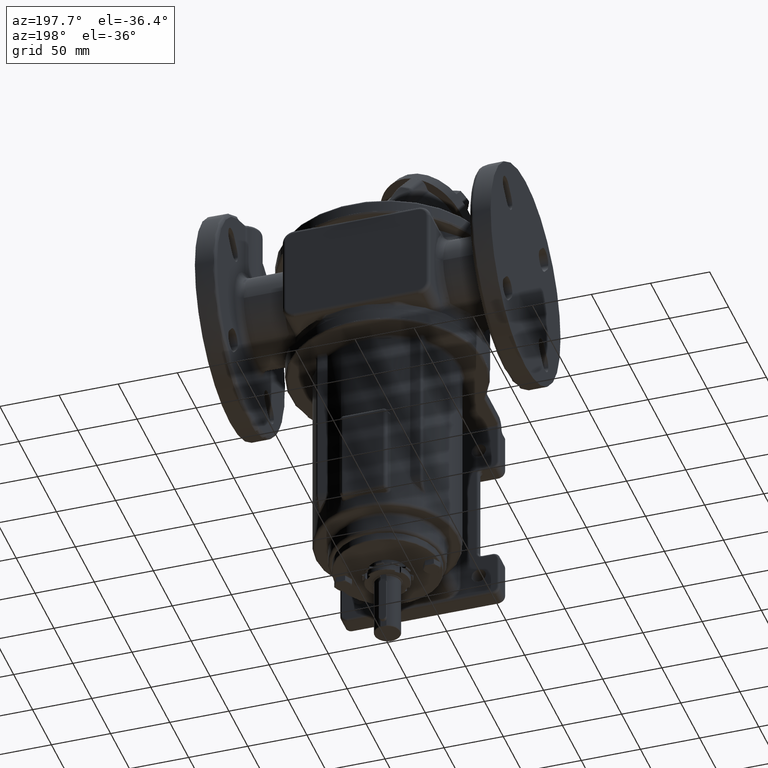
[diagram: clean part render]
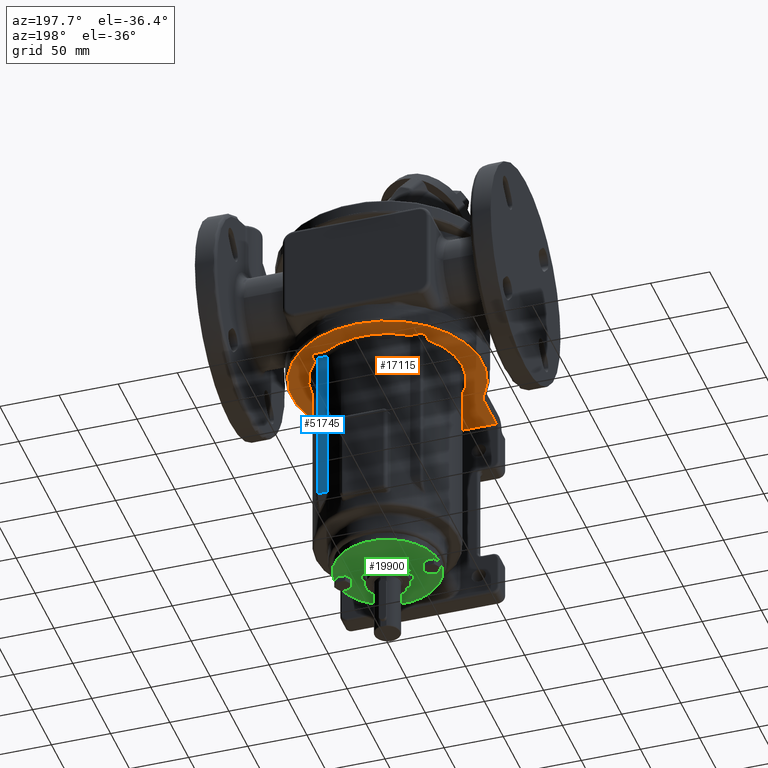
[diagram: same view with three faces highlighted in distinct colors, each labeled with its STEP entity id]
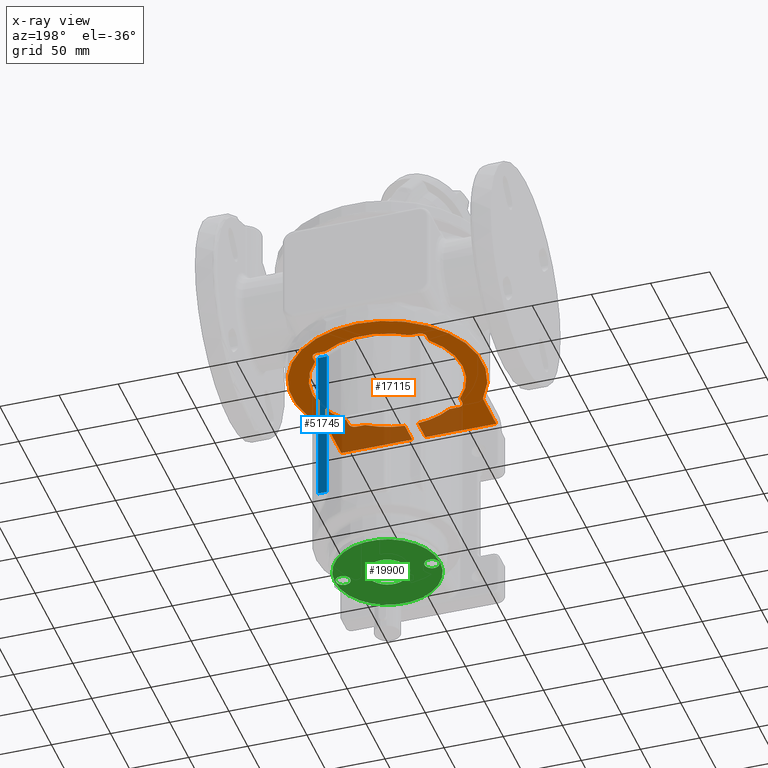
[diagram: x-ray of the same camera — body ghosted, the three highlighted faces saturated]
A machine part, auxiliary view with three faces highlighted in distinct colors.
The next image is the same camera in x-ray (body ghosted, the three faces saturated) — at least one of them is partly hidden behind the body in this view.
Their STEP definitions:

[orange] entity #17115 — the highlighted planar face has unit normal (0, 0, 1).
#1=DIRECTION('',(-1.E0,1.728553892614E-10,0.E0));
#2=VECTOR('',#1,6.E1);
#3=CARTESIAN_POINT('',(6.55E1,-8.300000001037E1,-1.E1));
#4=LINE('',#3,#2);
#5=DIRECTION('',(-7.912820252435E-11,-1.E0,0.E0));
#6=VECTOR('',#5,3.401020514789E1);
#7=CARTESIAN_POINT('',(6.550000000269E1,-4.898979486248E1,-1.E1));
#8=LINE('',#7,#6);
#9=DIRECTION('',(8.309016993840E-11,-1.E0,0.E0));
#10=VECTOR('',#9,3.401020514630E1);
#11=CARTESIAN_POINT('',(-6.550000000283E1,-4.898979486286E1,-1.E1));
#12=LINE('',#11,#10);
#13=DIRECTION('',(-1.E0,-1.526520539604E-10,0.E0));
#14=VECTOR('',#13,6.E1);
#15=CARTESIAN_POINT('',(-5.5E0,-8.3E1,-1.E1));
#16=LINE('',#15,#14);
#17=DIRECTION('',(-2.049295953677E-12,1.E0,0.E0));
#18=VECTOR('',#17,1.973863740658E1);
#19=CARTESIAN_POINT('',(-5.5E0,-8.3E1,-1.E1));
#20=LINE('',#19,#18);
#21=DIRECTION('',(-1.E0,1.896283518889E-10,0.E0));
#22=VECTOR('',#21,7.278826626025E0);
#23=CARTESIAN_POINT('',(-3.572117340998E1,-5.25E1,-1.E1));
#24=LINE('',#23,#22);
#25=DIRECTION('',(-1.009989508208E-10,1.E0,0.E0));
#26=VECTOR('',#25,5.927746762307E0);
#27=CARTESIAN_POINT('',(-4.799999999940E1,-4.750000002464E1,-1.E1));
#28=LINE('',#27,#26);
#29=DIRECTION('',(7.732169494111E-11,1.E0,0.E0));
#30=VECTOR('',#29,5.927737324932E0);
#31=CARTESIAN_POINT('',(-4.8E1,4.157226269542E1,-1.E1));
#32=LINE('',#31,#30);
#33=DIRECTION('',(1.E0,2.300731589235E-10,0.E0));
#34=VECTOR('',#33,7.278832397896E0);
#35=CARTESIAN_POINT('',(-4.300000004107E1,5.249999999833E1,-1.E1));
#36=LINE('',#35,#34);
#37=DIRECTION('',(1.E0,-1.896284450262E-10,0.E0));
#38=VECTOR('',#37,7.278823050981E0);
#39=CARTESIAN_POINT('',(3.572117698502E1,5.25E1,-1.E1));
#40=LINE('',#39,#38);
#41=DIRECTION('',(1.009989505942E-10,-1.E0,0.E0));
#42=VECTOR('',#41,5.927746775602E0);
#43=CARTESIAN_POINT('',(4.799999999940E1,4.750000002464E1,-1.E1));
#44=LINE('',#43,#42);
#45=DIRECTION('',(-7.732289385003E-11,-1.E0,0.E0));
#46=VECTOR('',#45,5.927737306958E0);
#47=CARTESIAN_POINT('',(4.8E1,-4.157226271339E1,-1.E1));
#48=LINE('',#47,#46);
#49=DIRECTION('',(-1.E0,-2.300721004596E-10,0.E0));
#50=VECTOR('',#49,7.278835001226E0);
#51=CARTESIAN_POINT('',(4.300000004107E1,-5.249999999833E1,-1.E1));
#52=LINE('',#51,#50);
#53=DIRECTION('',(-4.473596468185E-12,-1.E0,0.E0));
#54=VECTOR('',#53,1.973863738372E1);
#55=CARTESIAN_POINT('',(5.500000000088E0,-6.326136261628E1,-1.E1));
#56=LINE('',#55,#54);
#110=CARTESIAN_POINT('',(5.500000000088E0,-6.326136261628E1,-1.E1));
#112=CARTESIAN_POINT('',(0.E0,0.E0,-1.E1));
#113=DIRECTION('',(0.E0,0.E0,1.E0));
#114=DIRECTION('',(8.661417323373E-2,-9.962419309560E-1,0.E0));
#115=AXIS2_PLACEMENT_3D('',#112,#113,#114);
#189=CARTESIAN_POINT('',(4.3E1,-4.75E1,-1.E1));
#190=DIRECTION('',(0.E0,0.E0,1.E0));
#191=DIRECTION('',(0.E0,-1.E0,0.E0));
#192=AXIS2_PLACEMENT_3D('',#189,#190,#191);
#269=CARTESIAN_POINT('',(4.8E1,-4.157226271339E1,-1.E1));
#271=CARTESIAN_POINT('',(0.E0,0.E0,-1.E1));
#272=DIRECTION('',(0.E0,0.E0,1.E0));
#273=DIRECTION('',(7.559043768576E-1,-6.546820396555E-1,0.E0));
#274=AXIS2_PLACEMENT_3D('',#271,#272,#273);
#348=CARTESIAN_POINT('',(4.3E1,4.75E1,-1.E1));
#349=DIRECTION('',(0.E0,0.E0,1.E0));
#350=DIRECTION('',(1.E0,0.E0,0.E0));
#351=AXIS2_PLACEMENT_3D('',#348,#349,#350);
#427=CARTESIAN_POINT('',(3.572117698502E1,5.25E1,-1.E1));
#429=CARTESIAN_POINT('',(0.E0,0.E0,-1.E1));
#430=DIRECTION('',(0.E0,0.E0,1.E0));
#431=DIRECTION('',(5.625391702516E-1,8.267706344160E-1,0.E0));
#432=AXIS2_PLACEMENT_3D('',#429,#430,#431);
#470=CARTESIAN_POINT('',(-3.572116764317E1,5.25E1,-1.E1));
#506=CARTESIAN_POINT('',(-4.3E1,4.75E1,-1.E1));
#507=DIRECTION('',(0.E0,0.E0,1.E0));
#508=DIRECTION('',(0.E0,1.E0,0.E0));
#509=AXIS2_PLACEMENT_3D('',#506,#507,#508);
#624=CARTESIAN_POINT('',(0.E0,0.E0,-1.E1));
#625=DIRECTION('',(0.E0,0.E0,1.E0));
#626=DIRECTION('',(-7.559043774179E-1,6.546820390086E-1,0.E0));
#627=AXIS2_PLACEMENT_3D('',#624,#625,#626);
#629=CARTESIAN_POINT('',(-4.8E1,-4.157225326233E1,-1.E1));
#1496=CARTESIAN_POINT('',(-4.3E1,-4.75E1,-1.E1));
#1497=DIRECTION('',(0.E0,0.E0,1.E0));
#1498=DIRECTION('',(-1.E0,0.E0,0.E0));
#1499=AXIS2_PLACEMENT_3D('',#1496,#1497,#1498);
#1511=CARTESIAN_POINT('',(-5.500000000040E0,-6.326136259342E1,-1.E1));
#1576=CARTESIAN_POINT('',(0.E0,0.E0,-1.E1));
#1577=DIRECTION('',(0.E0,0.E0,1.E0));
#1578=DIRECTION('',(-5.625390163166E-1,-8.267707391542E-1,0.E0));
#1579=AXIS2_PLACEMENT_3D('',#1576,#1577,#1578);
#1888=CARTESIAN_POINT('',(-7.25E1,-4.898979485566E1,-1.E1));
#1889=DIRECTION('',(0.E0,0.E0,1.E0));
#1890=DIRECTION('',(1.E0,0.E0,0.E0));
#1891=AXIS2_PLACEMENT_3D('',#1888,#1889,#1890);
#1908=CARTESIAN_POINT('',(0.E0,0.E0,-1.E1));
#1909=DIRECTION('',(0.E0,0.E0,-1.E0));
#1910=DIRECTION('',(-8.285714267564E-1,-5.598833724651E-1,0.E0));
#1911=AXIS2_PLACEMENT_3D('',#1908,#1909,#1910);
#1913=CARTESIAN_POINT('',(7.25E1,-4.898979485566E1,-1.E1));
#1914=DIRECTION('',(0.E0,0.E0,1.E0));
#1915=DIRECTION('',(-8.285714326609E-1,5.598833637270E-1,0.E0));
#1916=AXIS2_PLACEMENT_3D('',#1913,#1914,#1915);
#14853=VERTEX_POINT('',#269);
#14855=VERTEX_POINT('',#629);
#14862=CARTESIAN_POINT('',(-4.799992796604E1,4.157230947705E1,-1.E1));
#14863=VERTEX_POINT('',#14862);
#14866=CARTESIAN_POINT('',(4.799994666520E1,4.157228788674E1,-1.E1));
#14867=VERTEX_POINT('',#14866);
#14870=CARTESIAN_POINT('',(4.300000004107E1,-5.249999999833E1,-1.E1));
#14871=CARTESIAN_POINT('',(3.572116503984E1,-5.25E1,-1.E1));
#14872=VERTEX_POINT('',#14870);
#14873=VERTEX_POINT('',#14871);
#14878=CARTESIAN_POINT('',(-3.572117340998E1,-5.25E1,-1.E1));
#14879=CARTESIAN_POINT('',(-4.300000003600E1,-5.249999999862E1,-1.E1));
#14880=VERTEX_POINT('',#14878);
#14881=VERTEX_POINT('',#14879);
#14895=VERTEX_POINT('',#427);
#14903=CARTESIAN_POINT('',(4.8E1,4.75E1,-1.E1));
#14904=VERTEX_POINT('',#14903);
#14905=CARTESIAN_POINT('',(4.3E1,5.25E1,-1.E1));
#14906=VERTEX_POINT('',#14905);
#14907=VERTEX_POINT('',#470);
#14926=CARTESIAN_POINT('',(-4.3E1,5.25E1,-1.E1));
#14927=VERTEX_POINT('',#14926);
#14928=CARTESIAN_POINT('',(-4.8E1,4.75E1,-1.E1));
#14929=VERTEX_POINT('',#14928);
#14946=CARTESIAN_POINT('',(6.67E1,-4.507061126721E1,-1.E1));
#14948=VERTEX_POINT('',#14946);
#14950=CARTESIAN_POINT('',(6.55E1,-4.898979485566E1,-1.E1));
#14952=VERTEX_POINT('',#14950);
#14954=CARTESIAN_POINT('',(-6.55E1,-4.898979485566E1,-1.E1));
#14956=VERTEX_POINT('',#14954);
#14958=CARTESIAN_POINT('',(-6.67E1,-4.507061126721E1,-1.E1));
#14960=VERTEX_POINT('',#14958);
#15063=CARTESIAN_POINT('',(4.799999999954E1,-4.750000002035E1,-1.E1));
#15064=VERTEX_POINT('',#15063);
#15065=CARTESIAN_POINT('',(-4.799999999940E1,-4.750000002464E1,-1.E1));
#15066=VERTEX_POINT('',#15065);
#15133=CARTESIAN_POINT('',(6.55E1,-8.300000001037E1,-1.E1));
#15134=CARTESIAN_POINT('',(5.5E0,-8.3E1,-1.E1));
#15135=VERTEX_POINT('',#15133);
#15136=VERTEX_POINT('',#15134);
#15155=VERTEX_POINT('',#110);
#15218=VERTEX_POINT('',#1511);
#15221=CARTESIAN_POINT('',(-5.5E0,-8.3E1,-1.E1));
#15222=VERTEX_POINT('',#15221);
#15225=CARTESIAN_POINT('',(-6.55E1,-8.300000000916E1,-1.E1));
#15226=VERTEX_POINT('',#15225);
#17056=CARTESIAN_POINT('',(0.E0,0.E0,-1.E1));
#17057=DIRECTION('',(0.E0,0.E0,1.E0));
#17058=DIRECTION('',(1.E0,0.E0,0.E0));
#17059=AXIS2_PLACEMENT_3D('',#17056,#17057,#17058);
#17060=PLANE('',#17059);
#17062=ORIENTED_EDGE('',*,*,#17061,.F.);
#17064=ORIENTED_EDGE('',*,*,#17063,.F.);
#17066=ORIENTED_EDGE('',*,*,#17065,.F.);
#17068=ORIENTED_EDGE('',*,*,#17067,.F.);
#17070=ORIENTED_EDGE('',*,*,#17069,.F.);
#17072=ORIENTED_EDGE('',*,*,#17071,.T.);
#17074=ORIENTED_EDGE('',*,*,#17073,.F.);
#17076=ORIENTED_EDGE('',*,*,#17075,.T.);
#17078=ORIENTED_EDGE('',*,*,#17077,.F.);
#17080=ORIENTED_EDGE('',*,*,#17079,.T.);
#17082=ORIENTED_EDGE('',*,*,#17081,.F.);
#17084=ORIENTED_EDGE('',*,*,#17083,.T.);
#17086=ORIENTED_EDGE('',*,*,#17085,.F.);
#17088=ORIENTED_EDGE('',*,*,#17087,.T.);
#17090=ORIENTED_EDGE('',*,*,#17089,.F.);
#17092=ORIENTED_EDGE('',*,*,#17091,.T.);
#17094=ORIENTED_EDGE('',*,*,#17093,.F.);
#17096=ORIENTED_EDGE('',*,*,#17095,.T.);
#17098=ORIENTED_EDGE('',*,*,#17097,.F.);
#17100=ORIENTED_EDGE('',*,*,#17099,.T.);
#17102=ORIENTED_EDGE('',*,*,#17101,.F.);
#17104=ORIENTED_EDGE('',*,*,#17103,.T.);
#17106=ORIENTED_EDGE('',*,*,#17105,.F.);
#17108=ORIENTED_EDGE('',*,*,#17107,.T.);
#17110=ORIENTED_EDGE('',*,*,#17109,.F.);
#17112=ORIENTED_EDGE('',*,*,#17111,.T.);
#17113=EDGE_LOOP('',(#17062,#17064,#17066,#17068,#17070,#17072,#17074,#17076,
#17078,#17080,#17082,#17084,#17086,#17088,#17090,#17092,#17094,#17096,#17098,
#17100,#17102,#17104,#17106,#17108,#17110,#17112));
#17114=FACE_OUTER_BOUND('',#17113,.F.);
#17115=ADVANCED_FACE('',(#17114),#17060,.F.);
#116=CIRCLE('',#115,6.35E1);
#193=CIRCLE('',#192,5.E0);
#275=CIRCLE('',#274,6.35E1);
#352=CIRCLE('',#351,5.E0);
#433=CIRCLE('',#432,6.35E1);
#510=CIRCLE('',#509,5.E0);
#628=CIRCLE('',#627,6.35E1);
#1500=CIRCLE('',#1499,5.E0);
#1580=CIRCLE('',#1579,6.35E1);
#1892=CIRCLE('',#1891,7.E0);
#1912=CIRCLE('',#1911,8.05E1);
#1917=CIRCLE('',#1916,7.E0);
#17061=EDGE_CURVE('',#15135,#15136,#4,.T.);
#17063=EDGE_CURVE('',#14952,#15135,#8,.T.);
#17065=EDGE_CURVE('',#14948,#14952,#1917,.T.);
#17067=EDGE_CURVE('',#14960,#14948,#1912,.T.);
#17069=EDGE_CURVE('',#14956,#14960,#1892,.T.);
#17071=EDGE_CURVE('',#14956,#15226,#12,.T.);
#17073=EDGE_CURVE('',#15222,#15226,#16,.T.);
#17075=EDGE_CURVE('',#15222,#15218,#20,.T.);
#17077=EDGE_CURVE('',#14880,#15218,#1580,.T.);
#17079=EDGE_CURVE('',#14880,#14881,#24,.T.);
#17081=EDGE_CURVE('',#15066,#14881,#1500,.T.);
#17083=EDGE_CURVE('',#15066,#14855,#28,.T.);
#17085=EDGE_CURVE('',#14863,#14855,#628,.T.);
#17087=EDGE_CURVE('',#14863,#14929,#32,.T.);
#17089=EDGE_CURVE('',#14927,#14929,#510,.T.);
#17091=EDGE_CURVE('',#14927,#14907,#36,.T.);
#17093=EDGE_CURVE('',#14895,#14907,#433,.T.);
#17095=EDGE_CURVE('',#14895,#14906,#40,.T.);
#17097=EDGE_CURVE('',#14904,#14906,#352,.T.);
#17099=EDGE_CURVE('',#14904,#14867,#44,.T.);
#17101=EDGE_CURVE('',#14853,#14867,#275,.T.);
#17103=EDGE_CURVE('',#14853,#15064,#48,.T.);
#17105=EDGE_CURVE('',#14872,#15064,#193,.T.);
#17107=EDGE_CURVE('',#14872,#14873,#52,.T.);
#17109=EDGE_CURVE('',#15155,#14873,#116,.T.);
#17111=EDGE_CURVE('',#15155,#15136,#56,.T.);

[blue] entity #51745 — the highlighted planar face has unit normal (0, -1, 0).
#358=CARTESIAN_POINT('',(3.541186241876E1,4.95E1,-1.299999999066E1));
#14105=DIRECTION('',(7.162438580082E-11,0.E0,1.E0));
#14106=VECTOR('',#14105,1.354999999968E2);
#14107=CARTESIAN_POINT('',(4.3E1,4.95E1,-1.484999999968E2));
#14108=LINE('',#14107,#14106);
#14109=DIRECTION('',(1.E0,-9.363862044460E-14,-1.230494811014E-9));
#14110=VECTOR('',#14109,7.588137590947E0);
#14111=CARTESIAN_POINT('',(3.541186241876E1,4.95E1,-1.299999999066E1));
#14112=LINE('',#14111,#14110);
#14113=DIRECTION('',(-3.639709280142E-12,0.E0,1.E0));
#14114=VECTOR('',#14113,1.355000000012E2);
#14115=CARTESIAN_POINT('',(3.541186241925E1,4.95E1,-1.484999999919E2));
#14116=LINE('',#14115,#14114);
#14132=DIRECTION('',(-1.E0,1.685495170268E-14,6.478219414650E-10));
#14133=VECTOR('',#14132,7.588137580749E0);
#14134=CARTESIAN_POINT('',(4.3E1,4.95E1,-1.484999999968E2));
#14135=LINE('',#14134,#14133);
#14882=CARTESIAN_POINT('',(4.3E1,4.95E1,-1.484999999968E2));
#14883=CARTESIAN_POINT('',(4.300000000971E1,4.95E1,-1.3E1));
#14884=VERTEX_POINT('',#14882);
#14885=VERTEX_POINT('',#14883);
#14896=VERTEX_POINT('',#358);
#14899=CARTESIAN_POINT('',(3.541186241925E1,4.95E1,-1.484999999919E2));
#14900=VERTEX_POINT('',#14899);
#51732=CARTESIAN_POINT('',(4.5E1,4.95E1,-1.E1));
#51733=DIRECTION('',(0.E0,-1.E0,0.E0));
#51734=DIRECTION('',(0.E0,0.E0,-1.E0));
#51735=AXIS2_PLACEMENT_3D('',#51732,#51733,#51734);
#51736=PLANE('',#51735);
#51737=ORIENTED_EDGE('',*,*,#51723,.T.);
#51738=ORIENTED_EDGE('',*,*,#17485,.F.);
#51740=ORIENTED_EDGE('',*,*,#51739,.F.);
#51742=ORIENTED_EDGE('',*,*,#51741,.F.);
#51743=EDGE_LOOP('',(#51737,#51738,#51740,#51742));
#51744=FACE_OUTER_BOUND('',#51743,.F.);
#51745=ADVANCED_FACE('',(#51744),#51736,.F.);
#17485=EDGE_CURVE('',#14896,#14885,#14112,.T.);
#51723=EDGE_CURVE('',#14884,#14885,#14108,.T.);
#51739=EDGE_CURVE('',#14900,#14896,#14116,.T.);
#51741=EDGE_CURVE('',#14884,#14900,#14135,.T.);

[green] entity #19900 — the highlighted planar face has unit normal (0, 0, 1).
#2612=CARTESIAN_POINT('',(0.E0,0.E0,-2.02E2));
#2613=DIRECTION('',(0.E0,0.E0,-1.E0));
#2614=DIRECTION('',(-1.E0,0.E0,0.E0));
#2615=AXIS2_PLACEMENT_3D('',#2612,#2613,#2614);
#2617=CARTESIAN_POINT('',(0.E0,0.E0,-2.02E2));
#2618=DIRECTION('',(0.E0,0.E0,-1.E0));
#2619=DIRECTION('',(1.E0,0.E0,0.E0));
#2620=AXIS2_PLACEMENT_3D('',#2617,#2618,#2619);
#2622=CARTESIAN_POINT('',(0.E0,0.E0,-2.02E2));
#2623=DIRECTION('',(0.E0,0.E0,-1.E0));
#2624=DIRECTION('',(-1.E0,0.E0,0.E0));
#2625=AXIS2_PLACEMENT_3D('',#2622,#2623,#2624);
#2627=CARTESIAN_POINT('',(0.E0,0.E0,-2.02E2));
#2628=DIRECTION('',(0.E0,0.E0,-1.E0));
#2629=DIRECTION('',(1.E0,0.E0,0.E0));
#2630=AXIS2_PLACEMENT_3D('',#2627,#2628,#2629);
#2632=CARTESIAN_POINT('',(-3.75E1,0.E0,-2.02E2));
#2633=DIRECTION('',(0.E0,0.E0,1.E0));
#2634=DIRECTION('',(0.E0,-1.E0,0.E0));
#2635=AXIS2_PLACEMENT_3D('',#2632,#2633,#2634);
#2637=CARTESIAN_POINT('',(-3.75E1,0.E0,-2.02E2));
#2638=DIRECTION('',(0.E0,0.E0,1.E0));
#2639=DIRECTION('',(0.E0,1.E0,0.E0));
#2640=AXIS2_PLACEMENT_3D('',#2637,#2638,#2639);
#2642=CARTESIAN_POINT('',(3.75E1,0.E0,-2.02E2));
#2643=DIRECTION('',(0.E0,0.E0,1.E0));
#2644=DIRECTION('',(0.E0,-1.E0,0.E0));
#2645=AXIS2_PLACEMENT_3D('',#2642,#2643,#2644);
#2647=CARTESIAN_POINT('',(3.75E1,0.E0,-2.02E2));
#2648=DIRECTION('',(0.E0,0.E0,1.E0));
#2649=DIRECTION('',(0.E0,1.E0,0.E0));
#2650=AXIS2_PLACEMENT_3D('',#2647,#2648,#2649);
#15355=CARTESIAN_POINT('',(-4.45E1,0.E0,-2.02E2));
#15356=CARTESIAN_POINT('',(4.45E1,1.089936651241E-14,-2.02E2));
#15357=VERTEX_POINT('',#15355);
#15358=VERTEX_POINT('',#15356);
#15367=CARTESIAN_POINT('',(-1.7E1,0.E0,-2.02E2));
#15368=CARTESIAN_POINT('',(1.7E1,0.E0,-2.02E2));
#15369=VERTEX_POINT('',#15367);
#15370=VERTEX_POINT('',#15368);
#15413=CARTESIAN_POINT('',(-3.75E1,-6.1E0,-2.02E2));
#15414=CARTESIAN_POINT('',(-3.75E1,6.1E0,-2.02E2));
#15415=VERTEX_POINT('',#15413);
#15416=VERTEX_POINT('',#15414);
#15451=CARTESIAN_POINT('',(3.75E1,-6.1E0,-2.02E2));
#15452=CARTESIAN_POINT('',(3.75E1,6.1E0,-2.02E2));
#15453=VERTEX_POINT('',#15451);
#15454=VERTEX_POINT('',#15452);
#19872=CARTESIAN_POINT('',(0.E0,0.E0,-2.02E2));
#19873=DIRECTION('',(0.E0,0.E0,1.E0));
#19874=DIRECTION('',(1.E0,0.E0,0.E0));
#19875=AXIS2_PLACEMENT_3D('',#19872,#19873,#19874);
#19876=PLANE('',#19875);
#19877=ORIENTED_EDGE('',*,*,#19862,.F.);
#19879=ORIENTED_EDGE('',*,*,#19878,.F.);
#19880=EDGE_LOOP('',(#19877,#19879));
#19881=FACE_OUTER_BOUND('',#19880,.F.);
#19883=ORIENTED_EDGE('',*,*,#19882,.T.);
#19885=ORIENTED_EDGE('',*,*,#19884,.T.);
#19886=EDGE_LOOP('',(#19883,#19885));
#19887=FACE_BOUND('',#19886,.F.);
#19889=ORIENTED_EDGE('',*,*,#19888,.F.);
#19891=ORIENTED_EDGE('',*,*,#19890,.F.);
#19892=EDGE_LOOP('',(#19889,#19891));
#19893=FACE_BOUND('',#19892,.F.);
#19895=ORIENTED_EDGE('',*,*,#19894,.F.);
#19897=ORIENTED_EDGE('',*,*,#19896,.F.);
#19898=EDGE_LOOP('',(#19895,#19897));
#19899=FACE_BOUND('',#19898,.F.);
#19900=ADVANCED_FACE('',(#19881,#19887,#19893,#19899),#19876,.F.);
#2616=CIRCLE('',#2615,4.45E1);
#2621=CIRCLE('',#2620,4.45E1);
#2626=CIRCLE('',#2625,1.7E1);
#2631=CIRCLE('',#2630,1.7E1);
#2636=CIRCLE('',#2635,6.1E0);
#2641=CIRCLE('',#2640,6.1E0);
#2646=CIRCLE('',#2645,6.1E0);
#2651=CIRCLE('',#2650,6.1E0);
#19862=EDGE_CURVE('',#15357,#15358,#2616,.T.);
#19878=EDGE_CURVE('',#15358,#15357,#2621,.T.);
#19882=EDGE_CURVE('',#15369,#15370,#2626,.T.);
#19884=EDGE_CURVE('',#15370,#15369,#2631,.T.);
#19888=EDGE_CURVE('',#15415,#15416,#2636,.T.);
#19890=EDGE_CURVE('',#15416,#15415,#2641,.T.);
#19894=EDGE_CURVE('',#15453,#15454,#2646,.T.);
#19896=EDGE_CURVE('',#15454,#15453,#2651,.T.);